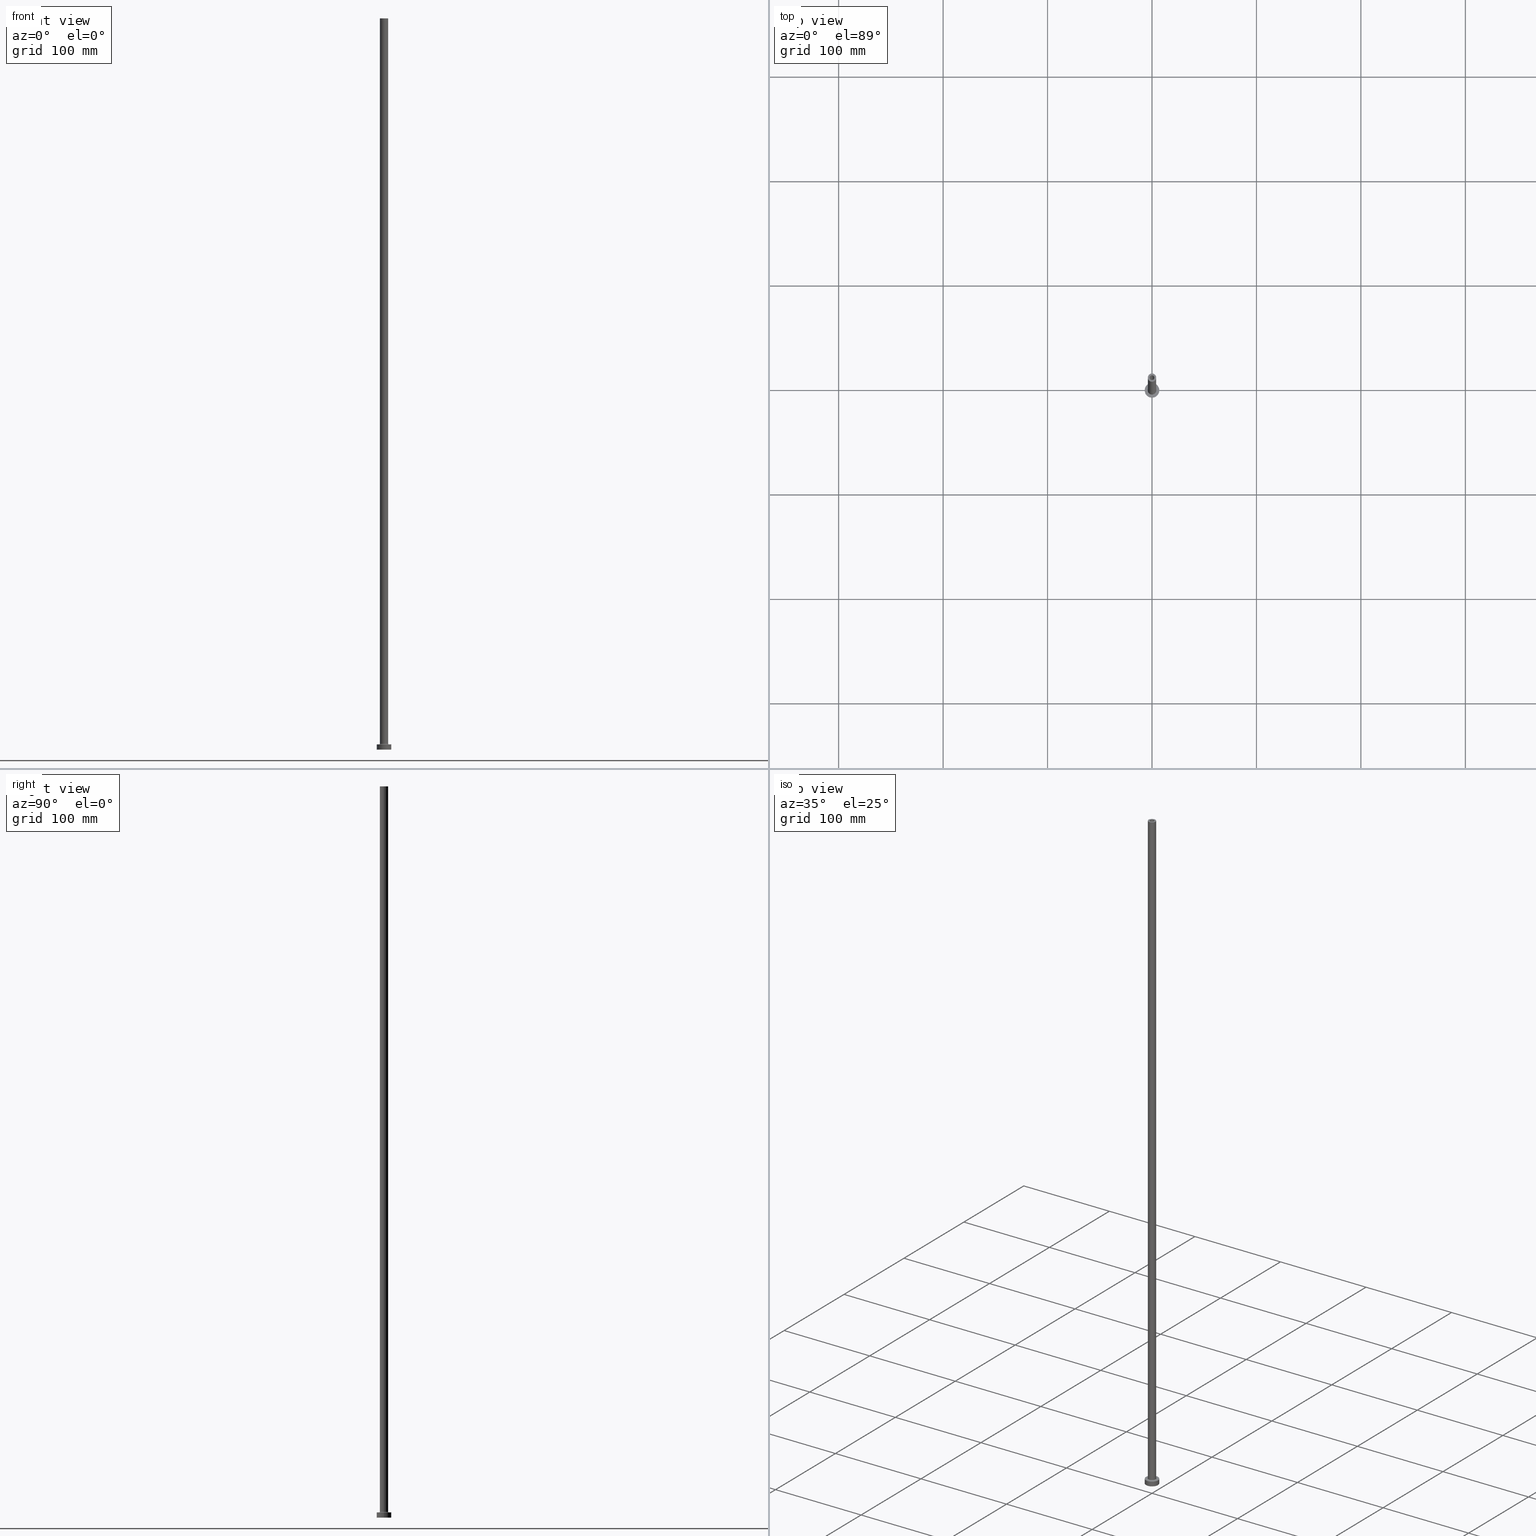
[diagram: canonical four-view strip — front | top / right | iso, engineering-drawing reading convention]
A machine part, canonical four-view strip (front | top / right | iso — engineering-drawing reading convention). The complete STEP part file that produces these views, byte-faithful:
ISO-10303-21;
HEADER;
FILE_DESCRIPTION (( 'STEP AP203' ),
    '1' );
FILE_NAME ('866c.STEP',
    '2023-02-13T17:19:39',
    ( '' ),
    ( '' ),
    'SwSTEP 2.0',
    'SolidWorks 2019',
    '' );
FILE_SCHEMA (( 'CONFIG_CONTROL_DESIGN' ));
ENDSEC;

DATA;
#1 = DIRECTION ( 'NONE',  ( -0.000000000000000000, -0.000000000000000000, -1.000000000000000000 ) ) ;
#2 = EDGE_LOOP ( 'NONE', ( #89, #126 ) ) ;
#3 = DIRECTION ( 'NONE',  ( 0.000000000000000000, 0.000000000000000000, 1.000000000000000000 ) ) ;
#4 = EDGE_CURVE ( 'NONE', #296, #48, #335, .T. ) ;
#5 = VERTEX_POINT ( 'NONE', #428 ) ;
#6 = DIRECTION ( 'NONE',  ( -0.000000000000000000, -0.000000000000000000, -1.000000000000000000 ) ) ;
#7 = APPROVAL_STATUS ( 'not_yet_approved' ) ;
#8 = ORIENTED_EDGE ( 'NONE', *, *, #272, .T. ) ;
#9 = AXIS2_PLACEMENT_3D ( 'NONE', #85, #346, #458 ) ;
#10 = EDGE_CURVE ( 'NONE', #190, #368, #114, .T. ) ;
#11 = DATE_AND_TIME ( #441, #237 ) ;
#12 = EDGE_LOOP ( 'NONE', ( #459, #208, #177, #357 ) ) ;
#13 = DIRECTION ( 'NONE',  ( 0.000000000000000000, 0.000000000000000000, -1.000000000000000000 ) ) ;
#14 = PERSON_AND_ORGANIZATION_ROLE ( 'design_supplier' ) ;
#15 = CC_DESIGN_PERSON_AND_ORGANIZATION_ASSIGNMENT ( #213, #207, ( #36 ) ) ;
#16 = ORIENTED_EDGE ( 'NONE', *, *, #385, .F. ) ;
#17 = FACE_OUTER_BOUND ( 'NONE', #324, .T. ) ;
#18 = ORIENTED_EDGE ( 'NONE', *, *, #301, .F. ) ;
#19 = VECTOR ( 'NONE', #243, 1000.000000000000000 ) ;
#20 = ORIENTED_EDGE ( 'NONE', *, *, #453, .T. ) ;
#21 = DIRECTION ( 'NONE',  ( 0.000000000000000000, 0.000000000000000000, 1.000000000000000000 ) ) ;
#22 = PRODUCT_DEFINITION_SHAPE ( 'NONE', 'NONE',  #84 ) ;
#23 = EDGE_CURVE ( 'NONE', #314, #368, #300, .T. ) ;
#24 = ORIENTED_EDGE ( 'NONE', *, *, #68, .F. ) ;
#25 = CYLINDRICAL_SURFACE ( 'NONE', #28, 2.250000000000000000 ) ;
#26 = DIRECTION ( 'NONE',  ( 0.000000000000000000, 0.000000000000000000, 1.000000000000000000 ) ) ;
#27 = CIRCLE ( 'NONE', #281, 2.399999999999999911 ) ;
#28 = AXIS2_PLACEMENT_3D ( 'NONE', #416, #166, #378 ) ;
#29 = EDGE_CURVE ( 'NONE', #94, #5, #242, .T. ) ;
#30 = DIRECTION ( 'NONE',  ( 1.000000000000000000, 0.000000000000000000, 0.000000000000000000 ) ) ;
#31 = CARTESIAN_POINT ( 'NONE',  ( 0.000000000000000000, 0.000000000000000000, 5.000000000000000000 ) ) ;
#32 = TOROIDAL_SURFACE ( 'NONE', #351, 4.500000000000000888, 0.5000000000000000000 ) ;
#33 = CARTESIAN_POINT ( 'NONE',  ( 0.000000000000000000, 0.000000000000000000, 0.000000000000000000 ) ) ;
#34 = VERTEX_POINT ( 'NONE', #139 ) ;
#35 = CARTESIAN_POINT ( 'NONE',  ( 0.000000000000000000, 0.000000000000000000, 5.499999999999949374 ) ) ;
#36 = PRODUCT ( '866c', '866c', '', ( #248 ) ) ;
#37 = FACE_OUTER_BOUND ( 'NONE', #375, .T. ) ;
#38 = FACE_OUTER_BOUND ( 'NONE', #228, .T. ) ;
#39 = DIRECTION ( 'NONE',  ( -0.000000000000000000, -0.000000000000000000, -1.000000000000000000 ) ) ;
#40 = ORIENTED_EDGE ( 'NONE', *, *, #23, .F. ) ;
#41 = CARTESIAN_POINT ( 'NONE',  ( 0.000000000000000000, 0.000000000000000000, 5.000000000000000000 ) ) ;
#42 = APPROVAL_STATUS ( 'not_yet_approved' ) ;
#43 = EDGE_LOOP ( 'NONE', ( #154, #402 ) ) ;
#44 = CC_DESIGN_APPROVAL ( #252, ( #71 ) ) ;
#45 = CYLINDRICAL_SURFACE ( 'NONE', #323, 4.000000000000000000 ) ;
#46 = CC_DESIGN_DATE_AND_TIME_ASSIGNMENT ( #399, #153, ( #71 ) ) ;
#47 = DIRECTION ( 'NONE',  ( 1.000000000000000000, 0.000000000000000000, 0.000000000000000000 ) ) ;
#48 = VERTEX_POINT ( 'NONE', #249 ) ;
#49 = DIRECTION ( 'NONE',  ( -0.000000000000000000, -0.000000000000000000, -1.000000000000000000 ) ) ;
#50 = AXIS2_PLACEMENT_3D ( 'NONE', #41, #214, #417 ) ;
#51 = CIRCLE ( 'NONE', #236, 2.250000000000000000 ) ;
#52 = PERSON_AND_ORGANIZATION ( #387, #404 ) ;
#53 = EDGE_LOOP ( 'NONE', ( #131, #90 ) ) ;
#54 = CARTESIAN_POINT ( 'NONE',  ( 0.000000000000000000, 0.000000000000000000, 5.499999999999949374 ) ) ;
#55 = APPLICATION_CONTEXT ( 'configuration controlled 3d designs of mechanical parts and assemblies' ) ;
#56 = SHAPE_DEFINITION_REPRESENTATION ( #22, #328 ) ;
#57 = ORIENTED_EDGE ( 'NONE', *, *, #419, .T. ) ;
#58 = CARTESIAN_POINT ( 'NONE',  ( 0.000000000000000000, 0.000000000000000000, 5.000000000000000000 ) ) ;
#59 = COORDINATED_UNIVERSAL_TIME_OFFSET ( 1, 0, .AHEAD. ) ;
#60 = VERTEX_POINT ( 'NONE', #241 ) ;
#61 = DIRECTION ( 'NONE',  ( 0.000000000000000000, 0.000000000000000000, 1.000000000000000000 ) ) ;
#62 = VERTEX_POINT ( 'NONE', #120 ) ;
#63 = EDGE_CURVE ( 'NONE', #5, #94, #192, .T. ) ;
#64 = CC_DESIGN_APPROVAL ( #210, ( #159 ) ) ;
#65 = EDGE_LOOP ( 'NONE', ( #370, #78 ) ) ;
#66 = DIRECTION ( 'NONE',  ( 0.000000000000000000, 0.000000000000000000, 1.000000000000000000 ) ) ;
#67 = CARTESIAN_POINT ( 'NONE',  ( 0.000000000000000000, 0.000000000000000000, 5.000000000000000000 ) ) ;
#68 = EDGE_CURVE ( 'NONE', #62, #96, #227, .T. ) ;
#69 = CLOSED_SHELL ( 'NONE', ( #339, #115, #160, #141, #347, #238, #256, #137, #95, #336, #201, #414, #429, #359 ) ) ;
#70 = DIRECTION ( 'NONE',  ( 0.000000000000000000, 0.000000000000000000, 1.000000000000000000 ) ) ;
#71 = SECURITY_CLASSIFICATION ( '', '', #253 ) ;
#72 = CYLINDRICAL_SURFACE ( 'NONE', #352, 7.000000000000000000 ) ;
#73 = CARTESIAN_POINT ( 'NONE',  ( 7.000000000000000000, 8.572527594031473190E-16, 5.000000000000000000 ) ) ;
#74 = CARTESIAN_POINT ( 'NONE',  ( 0.000000000000000000, 0.000000000000000000, 654.9999999999998863 ) ) ;
#75 = CARTESIAN_POINT ( 'NONE',  ( -2.399999999999999911, 0.000000000000000000, 661.7882250993908428 ) ) ;
#76 = CIRCLE ( 'NONE', #215, 4.000000000000000000 ) ;
#77 =( GEOMETRIC_REPRESENTATION_CONTEXT ( 3 ) GLOBAL_UNCERTAINTY_ASSIGNED_CONTEXT ( ( #449 ) ) GLOBAL_UNIT_ASSIGNED_CONTEXT ( ( #240, #455, #168 ) ) REPRESENTATION_CONTEXT ( 'NONE', 'WORKASPACE' ) );
#78 = ORIENTED_EDGE ( 'NONE', *, *, #272, .F. ) ;
#79 = CARTESIAN_POINT ( 'NONE',  ( 4.000000000000000000, 4.898587196589412829E-16, 700.0000000000000000 ) ) ;
#80 = CARTESIAN_POINT ( 'NONE',  ( 0.000000000000000000, 0.000000000000000000, 661.7882250993908428 ) ) ;
#81 = CARTESIAN_POINT ( 'NONE',  ( 4.000000000000000000, 4.898587196589412829E-16, 700.0000000000000000 ) ) ;
#82 = DIRECTION ( 'NONE',  ( 1.000000000000000000, 0.000000000000000000, 0.000000000000000000 ) ) ;
#83 = CARTESIAN_POINT ( 'NONE',  ( 0.000000000000000000, 0.000000000000000000, 700.0000000000000000 ) ) ;
#84 = PRODUCT_DEFINITION ( 'NEZN�M�', '', #159, #103 ) ;
#85 = CARTESIAN_POINT ( 'NONE',  ( 4.500000000000000888, 0.000000000000000000, 5.499999999999949374 ) ) ;
#86 = FACE_OUTER_BOUND ( 'NONE', #53, .T. ) ;
#87 = ORIENTED_EDGE ( 'NONE', *, *, #309, .T. ) ;
#88 = EDGE_CURVE ( 'NONE', #340, #255, #348, .T. ) ;
#89 = ORIENTED_EDGE ( 'NONE', *, *, #63, .T. ) ;
#90 = ORIENTED_EDGE ( 'NONE', *, *, #163, .F. ) ;
#91 = VECTOR ( 'NONE', #341, 1000.000000000000000 ) ;
#92 = CIRCLE ( 'NONE', #343, 4.500000000000000888 ) ;
#93 = APPROVAL_ROLE ( '' ) ;
#94 = VERTEX_POINT ( 'NONE', #361 ) ;
#95 = ADVANCED_FACE ( 'NONE', ( #394 ), #45, .T. ) ;
#96 = VERTEX_POINT ( 'NONE', #81 ) ;
#97 = ORIENTED_EDGE ( 'NONE', *, *, #379, .T. ) ;
#98 = FACE_BOUND ( 'NONE', #156, .T. ) ;
#99 = CIRCLE ( 'NONE', #206, 2.250000000000000000 ) ;
#100 = CARTESIAN_POINT ( 'NONE',  ( 0.000000000000000000, 0.000000000000000000, 700.0000000000000000 ) ) ;
#101 = CARTESIAN_POINT ( 'NONE',  ( 0.000000000000000000, 0.000000000000000000, 700.0000000000000000 ) ) ;
#102 = CARTESIAN_POINT ( 'NONE',  ( -4.500000000000000888, 5.510910596163089556E-16, 5.499999999999949374 ) ) ;
#103 = DESIGN_CONTEXT ( 'detailed design', #105, 'design' ) ;
#104 = DIRECTION ( 'NONE',  ( -0.000000000000000000, -0.000000000000000000, -1.000000000000000000 ) ) ;
#105 = APPLICATION_CONTEXT ( 'configuration controlled 3d designs of mechanical parts and assemblies' ) ;
#106 = DIRECTION ( 'NONE',  ( 1.000000000000000000, 0.000000000000000000, -0.000000000000000000 ) ) ;
#107 = EDGE_LOOP ( 'NONE', ( #161, #40 ) ) ;
#108 = DIRECTION ( 'NONE',  ( -1.000000000000000000, 0.000000000000000000, 0.000000000000000000 ) ) ;
#109 = APPLICATION_PROTOCOL_DEFINITION ( 'international standard', 'config_control_design', 1994, #55 ) ;
#110 = VECTOR ( 'NONE', #171, 1000.000000000000000 ) ;
#111 = CARTESIAN_POINT ( 'NONE',  ( 4.000000000000000000, 4.898587196589412829E-16, 5.499999999999949374 ) ) ;
#112 = AXIS2_PLACEMENT_3D ( 'NONE', #67, #21, #162 ) ;
#113 = PERSON_AND_ORGANIZATION ( #387, #404 ) ;
#114 = LINE ( 'NONE', #75, #110 ) ;
#115 = ADVANCED_FACE ( 'NONE', ( #209 ), #244, .F. ) ;
#116 = MANIFOLD_SOLID_BREP ( 'Odebrat vysunut�m4', #69 ) ;
#117 = DIRECTION ( 'NONE',  ( 1.000000000000000000, 0.000000000000000000, -0.000000000000000000 ) ) ;
#118 = EDGE_CURVE ( 'NONE', #96, #125, #358, .T. ) ;
#119 = CARTESIAN_POINT ( 'NONE',  ( 4.500000000000000888, 0.000000000000000000, 4.999999999999975131 ) ) ;
#120 = CARTESIAN_POINT ( 'NONE',  ( -4.000000000000000000, 0.000000000000000000, 700.0000000000000000 ) ) ;
#121 = DATE_AND_TIME ( #372, #389 ) ;
#122 = ORIENTED_EDGE ( 'NONE', *, *, #434, .F. ) ;
#123 = AXIS2_PLACEMENT_3D ( 'NONE', #167, #305, #270 ) ;
#124 = ORIENTED_EDGE ( 'NONE', *, *, #29, .F. ) ;
#125 = VERTEX_POINT ( 'NONE', #111 ) ;
#126 = ORIENTED_EDGE ( 'NONE', *, *, #29, .T. ) ;
#127 = DIRECTION ( 'NONE',  ( -0.000000000000000000, -0.000000000000000000, -1.000000000000000000 ) ) ;
#128 = EDGE_CURVE ( 'NONE', #333, #432, #51, .T. ) ;
#129 = COORDINATED_UNIVERSAL_TIME_OFFSET ( 1, 0, .AHEAD. ) ;
#130 = ORIENTED_EDGE ( 'NONE', *, *, #163, .T. ) ;
#131 = ORIENTED_EDGE ( 'NONE', *, *, #88, .F. ) ;
#132 = DIRECTION ( 'NONE',  ( 0.000000000000000000, 0.000000000000000000, -1.000000000000000000 ) ) ;
#133 = FACE_OUTER_BOUND ( 'NONE', #436, .T. ) ;
#134 = CIRCLE ( 'NONE', #245, 2.399999999999999911 ) ;
#135 = CARTESIAN_POINT ( 'NONE',  ( 2.399999999999999911, 2.939152317953647106E-16, 654.9999999999998863 ) ) ;
#136 = CARTESIAN_POINT ( 'NONE',  ( 0.000000000000000000, 0.000000000000000000, 5.499999999999949374 ) ) ;
#137 = ADVANCED_FACE ( 'NONE', ( #355, #86 ), #173, .F. ) ;
#138 = AXIS2_PLACEMENT_3D ( 'NONE', #136, #26, #444 ) ;
#139 = CARTESIAN_POINT ( 'NONE',  ( -4.000000000000000000, 0.000000000000000000, 5.499999999999949374 ) ) ;
#140 = FACE_OUTER_BOUND ( 'NONE', #65, .T. ) ;
#141 = ADVANCED_FACE ( 'NONE', ( #318 ), #461, .T. ) ;
#142 = AXIS2_PLACEMENT_3D ( 'NONE', #247, #353, #143 ) ;
#143 = DIRECTION ( 'NONE',  ( 1.000000000000000000, 0.000000000000000000, 0.000000000000000000 ) ) ;
#144 = FACE_BOUND ( 'NONE', #43, .T. ) ;
#145 = DIRECTION ( 'NONE',  ( 0.000000000000000000, 0.000000000000000000, 1.000000000000000000 ) ) ;
#146 = CALENDAR_DATE ( 2023, 13, 2 ) ;
#147 = DIRECTION ( 'NONE',  ( 1.000000000000000000, 0.000000000000000000, 0.000000000000000000 ) ) ;
#148 = DIRECTION ( 'NONE',  ( 0.000000000000000000, 0.000000000000000000, 1.000000000000000000 ) ) ;
#149 = VECTOR ( 'NONE', #13, 1000.000000000000000 ) ;
#150 = APPROVAL_DATE_TIME ( #286, #210 ) ;
#151 = ORIENTED_EDGE ( 'NONE', *, *, #4, .F. ) ;
#152 = CIRCLE ( 'NONE', #288, 4.000000000000000000 ) ;
#153 = DATE_TIME_ROLE ( 'classification_date' ) ;
#154 = ORIENTED_EDGE ( 'NONE', *, *, #128, .T. ) ;
#155 = CARTESIAN_POINT ( 'NONE',  ( 0.000000000000000000, 0.000000000000000000, 654.9999999999998863 ) ) ;
#156 = EDGE_LOOP ( 'NONE', ( #151, #16 ) ) ;
#157 = DIRECTION ( 'NONE',  ( 1.000000000000000000, 0.000000000000000000, 0.000000000000000000 ) ) ;
#158 = ORIENTED_EDGE ( 'NONE', *, *, #385, .T. ) ;
#159 = PRODUCT_DEFINITION_FORMATION_WITH_SPECIFIED_SOURCE ( 'LIBOVOLN�', '', #36, .NOT_KNOWN. ) ;
#160 = ADVANCED_FACE ( 'NONE', ( #38 ), #174, .F. ) ;
#161 = ORIENTED_EDGE ( 'NONE', *, *, #419, .F. ) ;
#162 = DIRECTION ( 'NONE',  ( 1.000000000000000000, 0.000000000000000000, -0.000000000000000000 ) ) ;
#163 = EDGE_CURVE ( 'NONE', #255, #340, #439, .T. ) ;
#164 = PLANE ( 'NONE',  #216 ) ;
#165 = CIRCLE ( 'NONE', #175, 2.250000000000000000 ) ;
#166 = DIRECTION ( 'NONE',  ( 0.000000000000000000, 0.000000000000000000, -1.000000000000000000 ) ) ;
#167 = CARTESIAN_POINT ( 'NONE',  ( 0.000000000000000000, 0.000000000000000000, 700.0000000000000000 ) ) ;
#168 =( NAMED_UNIT ( * ) SI_UNIT ( $, .STERADIAN. ) SOLID_ANGLE_UNIT ( ) );
#169 = LOCAL_TIME ( 18, 19, 39.00000000000000000, #363 ) ;
#170 = DIRECTION ( 'NONE',  ( 0.000000000000000000, 0.000000000000000000, -1.000000000000000000 ) ) ;
#171 = DIRECTION ( 'NONE',  ( 0.000000000000000000, 0.000000000000000000, -1.000000000000000000 ) ) ;
#172 = CYLINDRICAL_SURFACE ( 'NONE', #447, 2.399999999999999911 ) ;
#173 = PLANE ( 'NONE',  #415 ) ;
#174 = TOROIDAL_SURFACE ( 'NONE', #229, 4.500000000000000888, 0.5000000000000000000 ) ;
#175 = AXIS2_PLACEMENT_3D ( 'NONE', #100, #360, #313 ) ;
#176 = CARTESIAN_POINT ( 'NONE',  ( -4.000000000000000000, 0.000000000000000000, 700.0000000000000000 ) ) ;
#177 = ORIENTED_EDGE ( 'NONE', *, *, #301, .T. ) ;
#178 = DIRECTION ( 'NONE',  ( 1.000000000000000000, 0.000000000000000000, 0.000000000000000000 ) ) ;
#179 = CARTESIAN_POINT ( 'NONE',  ( 0.000000000000000000, 0.000000000000000000, 0.000000000000000000 ) ) ;
#180 = EDGE_CURVE ( 'NONE', #34, #125, #76, .T. ) ;
#181 = CALENDAR_DATE ( 2023, 13, 2 ) ;
#182 = EDGE_LOOP ( 'NONE', ( #124, #97, #130, #18 ) ) ;
#183 = DIRECTION ( 'NONE',  ( 1.000000000000000000, 0.000000000000000000, 0.000000000000000000 ) ) ;
#184 = ORIENTED_EDGE ( 'NONE', *, *, #406, .F. ) ;
#185 = CC_DESIGN_SECURITY_CLASSIFICATION ( #71, ( #159 ) ) ;
#186 = DIRECTION ( 'NONE',  ( 1.000000000000000000, 0.000000000000000000, 0.000000000000000000 ) ) ;
#187 = EDGE_CURVE ( 'NONE', #60, #407, #326, .T. ) ;
#188 = PERSON_AND_ORGANIZATION ( #387, #404 ) ;
#189 = ORIENTED_EDGE ( 'NONE', *, *, #187, .T. ) ;
#190 = VERTEX_POINT ( 'NONE', #325 ) ;
#191 = DIRECTION ( 'NONE',  ( -1.000000000000000000, 0.000000000000000000, 0.000000000000000000 ) ) ;
#192 = CIRCLE ( 'NONE', #142, 7.000000000000000000 ) ;
#193 = EDGE_LOOP ( 'NONE', ( #224, #254, #225, #408 ) ) ;
#194 = AXIS2_PLACEMENT_3D ( 'NONE', #396, #250, #106 ) ;
#195 = ORIENTED_EDGE ( 'NONE', *, *, #269, .T. ) ;
#196 = CARTESIAN_POINT ( 'NONE',  ( -7.000000000000000000, 0.000000000000000000, 0.000000000000000000 ) ) ;
#197 = CC_DESIGN_PERSON_AND_ORGANIZATION_ASSIGNMENT ( #369, #322, ( #71 ) ) ;
#198 = AXIS2_PLACEMENT_3D ( 'NONE', #279, #170, #426 ) ;
#199 = CARTESIAN_POINT ( 'NONE',  ( -2.250000000000000000, 0.000000000000000000, 700.0000000000000000 ) ) ;
#200 = APPROVAL_PERSON_ORGANIZATION ( #113, #438, #354 ) ;
#201 = ADVANCED_FACE ( 'NONE', ( #17 ), #32, .F. ) ;
#202 = DIRECTION ( 'NONE',  ( -0.000000000000000000, -0.000000000000000000, -1.000000000000000000 ) ) ;
#203 = CC_DESIGN_PERSON_AND_ORGANIZATION_ASSIGNMENT ( #223, #257, ( #159 ) ) ;
#204 = FACE_OUTER_BOUND ( 'NONE', #2, .T. ) ;
#205 = CARTESIAN_POINT ( 'NONE',  ( 0.000000000000000000, 0.000000000000000000, 700.0000000000000000 ) ) ;
#206 = AXIS2_PLACEMENT_3D ( 'NONE', #74, #452, #392 ) ;
#207 = PERSON_AND_ORGANIZATION_ROLE ( 'design_owner' ) ;
#208 = ORIENTED_EDGE ( 'NONE', *, *, #63, .F. ) ;
#209 = FACE_OUTER_BOUND ( 'NONE', #193, .T. ) ;
#210 = APPROVAL ( #7, 'NEUR�EN�' ) ;
#211 = DIRECTION ( 'NONE',  ( 1.000000000000000000, 0.000000000000000000, 0.000000000000000000 ) ) ;
#212 = DIRECTION ( 'NONE',  ( -0.000000000000000000, -0.000000000000000000, -1.000000000000000000 ) ) ;
#213 = PERSON_AND_ORGANIZATION ( #387, #404 ) ;
#214 = DIRECTION ( 'NONE',  ( 0.000000000000000000, 0.000000000000000000, 1.000000000000000000 ) ) ;
#215 = AXIS2_PLACEMENT_3D ( 'NONE', #285, #148, #287 ) ;
#216 = AXIS2_PLACEMENT_3D ( 'NONE', #273, #70, #345 ) ;
#217 = EDGE_CURVE ( 'NONE', #263, #314, #221, .T. ) ;
#218 = CARTESIAN_POINT ( 'NONE',  ( 0.000000000000000000, 0.000000000000000000, 654.9999999999998863 ) ) ;
#219 = ORIENTED_EDGE ( 'NONE', *, *, #10, .T. ) ;
#220 = ORIENTED_EDGE ( 'NONE', *, *, #289, .T. ) ;
#221 = LINE ( 'NONE', #331, #149 ) ;
#222 = VECTOR ( 'NONE', #132, 1000.000000000000000 ) ;
#223 = PERSON_AND_ORGANIZATION ( #387, #404 ) ;
#224 = ORIENTED_EDGE ( 'NONE', *, *, #230, .T. ) ;
#225 = ORIENTED_EDGE ( 'NONE', *, *, #23, .T. ) ;
#226 = ORIENTED_EDGE ( 'NONE', *, *, #391, .T. ) ;
#227 = CIRCLE ( 'NONE', #306, 4.000000000000000000 ) ;
#228 = EDGE_LOOP ( 'NONE', ( #291, #330, #266, #294 ) ) ;
#229 = AXIS2_PLACEMENT_3D ( 'NONE', #35, #145, #178 ) ;
#230 = EDGE_CURVE ( 'NONE', #190, #263, #134, .T. ) ;
#231 = CIRCLE ( 'NONE', #316, 0.5000000000000004441 ) ;
#232 = CARTESIAN_POINT ( 'NONE',  ( 2.399999999999999911, 2.939152317953647106E-16, 0.000000000000000000 ) ) ;
#233 = CARTESIAN_POINT ( 'NONE',  ( 0.000000000000000000, 0.000000000000000000, 5.000000000000000000 ) ) ;
#234 = DIRECTION ( 'NONE',  ( 1.000000000000000000, 0.000000000000000000, 0.000000000000000000 ) ) ;
#235 = CARTESIAN_POINT ( 'NONE',  ( 0.000000000000000000, 0.000000000000000000, 654.9999999999998863 ) ) ;
#236 = AXIS2_PLACEMENT_3D ( 'NONE', #218, #421, #390 ) ;
#237 = LOCAL_TIME ( 18, 19, 39.00000000000000000, #129 ) ;
#238 = ADVANCED_FACE ( 'NONE', ( #371 ), #437, .T. ) ;
#239 = LINE ( 'NONE', #73, #376 ) ;
#240 =( LENGTH_UNIT ( ) NAMED_UNIT ( * ) SI_UNIT ( .MILLI., .METRE. ) );
#241 = CARTESIAN_POINT ( 'NONE',  ( -4.500000000000000888, 5.510910596163088569E-16, 4.999999999999975131 ) ) ;
#242 = CIRCLE ( 'NONE', #50, 7.000000000000000000 ) ;
#243 = DIRECTION ( 'NONE',  ( 0.000000000000000000, 0.000000000000000000, -1.000000000000000000 ) ) ;
#244 = CYLINDRICAL_SURFACE ( 'NONE', #198, 2.399999999999999911 ) ;
#245 = AXIS2_PLACEMENT_3D ( 'NONE', #155, #259, #157 ) ;
#246 = COORDINATED_UNIVERSAL_TIME_OFFSET ( 1, 0, .AHEAD. ) ;
#247 = CARTESIAN_POINT ( 'NONE',  ( 0.000000000000000000, 0.000000000000000000, 5.000000000000000000 ) ) ;
#248 = MECHANICAL_CONTEXT ( 'NONE', #55, 'mechanical' ) ;
#249 = CARTESIAN_POINT ( 'NONE',  ( 2.250000000000000000, 2.755455298081544285E-16, 700.0000000000000000 ) ) ;
#250 = DIRECTION ( 'NONE',  ( 0.000000000000000000, 0.000000000000000000, 1.000000000000000000 ) ) ;
#251 = DIRECTION ( 'NONE',  ( 0.000000000000000000, 0.000000000000000000, 1.000000000000000000 ) ) ;
#252 = APPROVAL ( #430, 'NEUR�EN�' ) ;
#253 = SECURITY_CLASSIFICATION_LEVEL ( 'unclassified' ) ;
#254 = ORIENTED_EDGE ( 'NONE', *, *, #217, .T. ) ;
#255 = VERTEX_POINT ( 'NONE', #337 ) ;
#256 = ADVANCED_FACE ( 'NONE', ( #302, #204 ), #448, .T. ) ;
#257 = PERSON_AND_ORGANIZATION_ROLE ( 'creator' ) ;
#258 = EDGE_LOOP ( 'NONE', ( #350, #195, #293, #297 ) ) ;
#259 = DIRECTION ( 'NONE',  ( 0.000000000000000000, 0.000000000000000000, 1.000000000000000000 ) ) ;
#260 = PRODUCT_RELATED_PRODUCT_CATEGORY ( 'detail', '', ( #36 ) ) ;
#261 = VECTOR ( 'NONE', #212, 1000.000000000000000 ) ;
#262 = LOCAL_TIME ( 18, 19, 39.00000000000000000, #246 ) ;
#263 = VERTEX_POINT ( 'NONE', #135 ) ;
#264 = APPROVAL_ROLE ( '' ) ;
#265 = ORIENTED_EDGE ( 'NONE', *, *, #118, .F. ) ;
#266 = ORIENTED_EDGE ( 'NONE', *, *, #289, .F. ) ;
#267 = LINE ( 'NONE', #298, #91 ) ;
#268 = AXIS2_PLACEMENT_3D ( 'NONE', #395, #312, #47 ) ;
#269 = EDGE_CURVE ( 'NONE', #48, #432, #413, .T. ) ;
#270 = DIRECTION ( 'NONE',  ( -1.000000000000000000, 0.000000000000000000, 0.000000000000000000 ) ) ;
#271 = CARTESIAN_POINT ( 'NONE',  ( 2.250000000000000000, 2.755455298081544285E-16, 700.0000000000000000 ) ) ;
#272 = EDGE_CURVE ( 'NONE', #263, #190, #27, .T. ) ;
#273 = CARTESIAN_POINT ( 'NONE',  ( 0.000000000000000000, 0.000000000000000000, 700.0000000000000000 ) ) ;
#274 = AXIS2_PLACEMENT_3D ( 'NONE', #366, #49, #183 ) ;
#275 = PLANE ( 'NONE',  #194 ) ;
#276 = DIRECTION ( 'NONE',  ( -1.000000000000000000, 0.000000000000000000, 0.000000000000000000 ) ) ;
#277 = CARTESIAN_POINT ( 'NONE',  ( 0.000000000000000000, 0.000000000000000000, 0.000000000000000000 ) ) ;
#278 = EDGE_LOOP ( 'NONE', ( #373, #87 ) ) ;
#279 = CARTESIAN_POINT ( 'NONE',  ( 0.000000000000000000, 0.000000000000000000, 661.7882250993908428 ) ) ;
#280 = CARTESIAN_POINT ( 'NONE',  ( 0.000000000000000000, 0.000000000000000000, 0.000000000000000000 ) ) ;
#281 = AXIS2_PLACEMENT_3D ( 'NONE', #235, #66, #30 ) ;
#282 = DIRECTION ( 'NONE',  ( -0.000000000000000000, -0.000000000000000000, -1.000000000000000000 ) ) ;
#283 = DATE_AND_TIME ( #146, #262 ) ;
#284 = ORIENTED_EDGE ( 'NONE', *, *, #342, .F. ) ;
#285 = CARTESIAN_POINT ( 'NONE',  ( 0.000000000000000000, 0.000000000000000000, 5.499999999999949374 ) ) ;
#286 = DATE_AND_TIME ( #181, #308 ) ;
#287 = DIRECTION ( 'NONE',  ( 1.000000000000000000, 0.000000000000000000, 0.000000000000000000 ) ) ;
#288 = AXIS2_PLACEMENT_3D ( 'NONE', #101, #409, #412 ) ;
#289 = EDGE_CURVE ( 'NONE', #407, #60, #92, .T. ) ;
#290 = PERSON_AND_ORGANIZATION ( #387, #404 ) ;
#291 = ORIENTED_EDGE ( 'NONE', *, *, #180, .F. ) ;
#292 = PERSON_AND_ORGANIZATION ( #387, #404 ) ;
#293 = ORIENTED_EDGE ( 'NONE', *, *, #128, .F. ) ;
#294 = ORIENTED_EDGE ( 'NONE', *, *, #391, .F. ) ;
#295 = APPROVAL_DATE_TIME ( #11, #252 ) ;
#296 = VERTEX_POINT ( 'NONE', #199 ) ;
#297 = ORIENTED_EDGE ( 'NONE', *, *, #453, .F. ) ;
#298 = CARTESIAN_POINT ( 'NONE',  ( -7.000000000000000000, 0.000000000000000000, 5.000000000000000000 ) ) ;
#299 = DIRECTION ( 'NONE',  ( 1.224646799147353207E-16, 1.000000000000000000, -0.000000000000000000 ) ) ;
#300 = CIRCLE ( 'NONE', #445, 2.399999999999999911 ) ;
#301 = EDGE_CURVE ( 'NONE', #5, #340, #267, .T. ) ;
#302 = FACE_BOUND ( 'NONE', #338, .T. ) ;
#303 = EDGE_CURVE ( 'NONE', #125, #34, #383, .T. ) ;
#304 = DIRECTION ( 'NONE',  ( -1.000000000000000000, 1.224646799147351482E-16, 0.000000000000000000 ) ) ;
#305 = DIRECTION ( 'NONE',  ( 0.000000000000000000, 0.000000000000000000, -1.000000000000000000 ) ) ;
#306 = AXIS2_PLACEMENT_3D ( 'NONE', #83, #251, #397 ) ;
#307 = DIRECTION ( 'NONE',  ( -1.000000000000000000, 0.000000000000000000, 0.000000000000000000 ) ) ;
#308 = LOCAL_TIME ( 18, 19, 39.00000000000000000, #435 ) ;
#309 = EDGE_CURVE ( 'NONE', #96, #62, #152, .T. ) ;
#310 = CARTESIAN_POINT ( 'NONE',  ( 0.000000000000000000, 0.000000000000000000, 0.000000000000000000 ) ) ;
#311 = LINE ( 'NONE', #356, #19 ) ;
#312 = DIRECTION ( 'NONE',  ( 0.000000000000000000, 0.000000000000000000, 1.000000000000000000 ) ) ;
#313 = DIRECTION ( 'NONE',  ( 1.000000000000000000, 0.000000000000000000, 0.000000000000000000 ) ) ;
#314 = VERTEX_POINT ( 'NONE', #232 ) ;
#315 = DIRECTION ( 'NONE',  ( 0.000000000000000000, 0.000000000000000000, 1.000000000000000000 ) ) ;
#316 = AXIS2_PLACEMENT_3D ( 'NONE', #102, #299, #304 ) ;
#317 = CARTESIAN_POINT ( 'NONE',  ( 2.250000000000000000, 2.755455298081544285E-16, 654.9999999999998863 ) ) ;
#318 = FACE_OUTER_BOUND ( 'NONE', #431, .T. ) ;
#319 = PERSON_AND_ORGANIZATION_ROLE ( 'creator' ) ;
#320 = DIRECTION ( 'NONE',  ( -0.000000000000000000, -0.000000000000000000, -1.000000000000000000 ) ) ;
#321 = AXIS2_PLACEMENT_3D ( 'NONE', #377, #364, #425 ) ;
#322 = PERSON_AND_ORGANIZATION_ROLE ( 'classification_officer' ) ;
#323 = AXIS2_PLACEMENT_3D ( 'NONE', #456, #6, #276 ) ;
#324 = EDGE_LOOP ( 'NONE', ( #284, #433, #226, #405 ) ) ;
#325 = CARTESIAN_POINT ( 'NONE',  ( -2.399999999999999911, 0.000000000000000000, 654.9999999999998863 ) ) ;
#326 = CIRCLE ( 'NONE', #274, 4.500000000000000888 ) ;
#327 = CC_DESIGN_APPROVAL ( #438, ( #84 ) ) ;
#328 = ADVANCED_BREP_SHAPE_REPRESENTATION ( '866c', ( #116, #403 ), #77 ) ;
#329 = CALENDAR_DATE ( 2023, 13, 2 ) ;
#330 = ORIENTED_EDGE ( 'NONE', *, *, #342, .T. ) ;
#331 = CARTESIAN_POINT ( 'NONE',  ( 2.399999999999999911, 2.939152317953647106E-16, 661.7882250993908428 ) ) ;
#332 = DATE_TIME_ROLE ( 'creation_date' ) ;
#333 = VERTEX_POINT ( 'NONE', #381 ) ;
#334 = ORIENTED_EDGE ( 'NONE', *, *, #118, .T. ) ;
#335 = CIRCLE ( 'NONE', #321, 2.250000000000000000 ) ;
#336 = ADVANCED_FACE ( 'NONE', ( #98, #380 ), #164, .T. ) ;
#337 = CARTESIAN_POINT ( 'NONE',  ( 7.000000000000000000, 8.572527594031473190E-16, 0.000000000000000000 ) ) ;
#338 = EDGE_LOOP ( 'NONE', ( #220, #189 ) ) ;
#339 = ADVANCED_FACE ( 'NONE', ( #344 ), #25, .F. ) ;
#340 = VERTEX_POINT ( 'NONE', #196 ) ;
#341 = DIRECTION ( 'NONE',  ( -0.000000000000000000, -0.000000000000000000, -1.000000000000000000 ) ) ;
#342 = EDGE_CURVE ( 'NONE', #34, #60, #231, .T. ) ;
#343 = AXIS2_PLACEMENT_3D ( 'NONE', #233, #202, #234 ) ;
#344 = FACE_OUTER_BOUND ( 'NONE', #258, .T. ) ;
#345 = DIRECTION ( 'NONE',  ( 1.000000000000000000, 0.000000000000000000, -0.000000000000000000 ) ) ;
#346 = DIRECTION ( 'NONE',  ( 0.000000000000000000, -1.000000000000000000, 0.000000000000000000 ) ) ;
#347 = ADVANCED_FACE ( 'NONE', ( #384 ), #72, .T. ) ;
#348 = CIRCLE ( 'NONE', #268, 7.000000000000000000 ) ;
#349 = LINE ( 'NONE', #176, #460 ) ;
#350 = ORIENTED_EDGE ( 'NONE', *, *, #4, .T. ) ;
#351 = AXIS2_PLACEMENT_3D ( 'NONE', #54, #61, #186 ) ;
#352 = AXIS2_PLACEMENT_3D ( 'NONE', #31, #104, #446 ) ;
#353 = DIRECTION ( 'NONE',  ( 0.000000000000000000, 0.000000000000000000, 1.000000000000000000 ) ) ;
#354 = APPROVAL_ROLE ( '' ) ;
#355 = FACE_BOUND ( 'NONE', #107, .T. ) ;
#356 = CARTESIAN_POINT ( 'NONE',  ( -2.250000000000000000, 0.000000000000000000, 700.0000000000000000 ) ) ;
#357 = ORIENTED_EDGE ( 'NONE', *, *, #88, .T. ) ;
#358 = LINE ( 'NONE', #79, #261 ) ;
#359 = ADVANCED_FACE ( 'NONE', ( #133 ), #386, .F. ) ;
#360 = DIRECTION ( 'NONE',  ( 0.000000000000000000, 0.000000000000000000, 1.000000000000000000 ) ) ;
#361 = CARTESIAN_POINT ( 'NONE',  ( 7.000000000000000000, 8.572527594031473190E-16, 5.000000000000000000 ) ) ;
#362 = APPROVAL_PERSON_ORGANIZATION ( #292, #210, #93 ) ;
#363 = COORDINATED_UNIVERSAL_TIME_OFFSET ( 1, 0, .AHEAD. ) ;
#364 = DIRECTION ( 'NONE',  ( 0.000000000000000000, 0.000000000000000000, 1.000000000000000000 ) ) ;
#365 = ORIENTED_EDGE ( 'NONE', *, *, #180, .T. ) ;
#366 = CARTESIAN_POINT ( 'NONE',  ( 0.000000000000000000, 0.000000000000000000, 5.000000000000000000 ) ) ;
#367 = CC_DESIGN_PERSON_AND_ORGANIZATION_ASSIGNMENT ( #188, #319, ( #84 ) ) ;
#368 = VERTEX_POINT ( 'NONE', #450 ) ;
#369 = PERSON_AND_ORGANIZATION ( #387, #404 ) ;
#370 = ORIENTED_EDGE ( 'NONE', *, *, #230, .F. ) ;
#371 = FACE_OUTER_BOUND ( 'NONE', #12, .T. ) ;
#372 = CALENDAR_DATE ( 2023, 13, 2 ) ;
#373 = ORIENTED_EDGE ( 'NONE', *, *, #68, .T. ) ;
#374 = CC_DESIGN_DATE_AND_TIME_ASSIGNMENT ( #121, #332, ( #84 ) ) ;
#375 = EDGE_LOOP ( 'NONE', ( #393, #8, #219, #57 ) ) ;
#376 = VECTOR ( 'NONE', #411, 1000.000000000000000 ) ;
#377 = CARTESIAN_POINT ( 'NONE',  ( 0.000000000000000000, 0.000000000000000000, 700.0000000000000000 ) ) ;
#378 = DIRECTION ( 'NONE',  ( -1.000000000000000000, 0.000000000000000000, 0.000000000000000000 ) ) ;
#379 = EDGE_CURVE ( 'NONE', #94, #255, #239, .T. ) ;
#380 = FACE_OUTER_BOUND ( 'NONE', #278, .T. ) ;
#381 = CARTESIAN_POINT ( 'NONE',  ( -2.250000000000000000, 0.000000000000000000, 654.9999999999998863 ) ) ;
#382 = AXIS2_PLACEMENT_3D ( 'NONE', #205, #320, #108 ) ;
#383 = CIRCLE ( 'NONE', #138, 4.000000000000000000 ) ;
#384 = FACE_OUTER_BOUND ( 'NONE', #182, .T. ) ;
#385 = EDGE_CURVE ( 'NONE', #48, #296, #165, .T. ) ;
#386 = CYLINDRICAL_SURFACE ( 'NONE', #123, 2.250000000000000000 ) ;
#387 = PERSON ( 'NEUR�EN�', 'NEUR�EN�', 'NEUR�EN�', ('NEUR�EN�'), ('NEUR�EN�'), ('NEUR�EN�') ) ;
#388 = DIRECTION ( 'NONE',  ( 0.000000000000000000, 0.000000000000000000, -1.000000000000000000 ) ) ;
#389 = LOCAL_TIME ( 18, 19, 39.00000000000000000, #59 ) ;
#390 = DIRECTION ( 'NONE',  ( 1.000000000000000000, 0.000000000000000000, 0.000000000000000000 ) ) ;
#391 = EDGE_CURVE ( 'NONE', #125, #407, #398, .T. ) ;
#392 = DIRECTION ( 'NONE',  ( 1.000000000000000000, 0.000000000000000000, 0.000000000000000000 ) ) ;
#393 = ORIENTED_EDGE ( 'NONE', *, *, #217, .F. ) ;
#394 = FACE_OUTER_BOUND ( 'NONE', #420, .T. ) ;
#395 = CARTESIAN_POINT ( 'NONE',  ( 0.000000000000000000, 0.000000000000000000, 0.000000000000000000 ) ) ;
#396 = CARTESIAN_POINT ( 'NONE',  ( 0.000000000000000000, 0.000000000000000000, 654.9999999999998863 ) ) ;
#397 = DIRECTION ( 'NONE',  ( 1.000000000000000000, 0.000000000000000000, 0.000000000000000000 ) ) ;
#398 = CIRCLE ( 'NONE', #9, 0.5000000000000004441 ) ;
#399 = DATE_AND_TIME ( #329, #169 ) ;
#400 = ORIENTED_EDGE ( 'NONE', *, *, #406, .T. ) ;
#401 = ORIENTED_EDGE ( 'NONE', *, *, #303, .T. ) ;
#402 = ORIENTED_EDGE ( 'NONE', *, *, #434, .T. ) ;
#403 = AXIS2_PLACEMENT_3D ( 'NONE', #277, #418, #82 ) ;
#404 = ORGANIZATION ( 'NEUR�EN�', 'NEUR�EN�', '' ) ;
#405 = ORIENTED_EDGE ( 'NONE', *, *, #187, .F. ) ;
#406 = EDGE_CURVE ( 'NONE', #62, #34, #349, .T. ) ;
#407 = VERTEX_POINT ( 'NONE', #119 ) ;
#408 = ORIENTED_EDGE ( 'NONE', *, *, #10, .F. ) ;
#409 = DIRECTION ( 'NONE',  ( 0.000000000000000000, 0.000000000000000000, 1.000000000000000000 ) ) ;
#410 = CIRCLE ( 'NONE', #451, 2.399999999999999911 ) ;
#411 = DIRECTION ( 'NONE',  ( -0.000000000000000000, -0.000000000000000000, -1.000000000000000000 ) ) ;
#412 = DIRECTION ( 'NONE',  ( 1.000000000000000000, 0.000000000000000000, 0.000000000000000000 ) ) ;
#413 = LINE ( 'NONE', #271, #222 ) ;
#414 = ADVANCED_FACE ( 'NONE', ( #37 ), #172, .F. ) ;
#415 = AXIS2_PLACEMENT_3D ( 'NONE', #179, #315, #117 ) ;
#416 = CARTESIAN_POINT ( 'NONE',  ( 0.000000000000000000, 0.000000000000000000, 700.0000000000000000 ) ) ;
#417 = DIRECTION ( 'NONE',  ( 1.000000000000000000, 0.000000000000000000, 0.000000000000000000 ) ) ;
#418 = DIRECTION ( 'NONE',  ( 0.000000000000000000, 0.000000000000000000, 1.000000000000000000 ) ) ;
#419 = EDGE_CURVE ( 'NONE', #368, #314, #410, .T. ) ;
#420 = EDGE_LOOP ( 'NONE', ( #265, #24, #400, #365 ) ) ;
#421 = DIRECTION ( 'NONE',  ( 0.000000000000000000, 0.000000000000000000, 1.000000000000000000 ) ) ;
#422 = APPLICATION_PROTOCOL_DEFINITION ( 'international standard', 'config_control_design', 1994, #105 ) ;
#423 = AXIS2_PLACEMENT_3D ( 'NONE', #58, #127, #191 ) ;
#424 = CC_DESIGN_PERSON_AND_ORGANIZATION_ASSIGNMENT ( #52, #14, ( #159 ) ) ;
#425 = DIRECTION ( 'NONE',  ( 1.000000000000000000, 0.000000000000000000, 0.000000000000000000 ) ) ;
#426 = DIRECTION ( 'NONE',  ( -1.000000000000000000, 0.000000000000000000, 0.000000000000000000 ) ) ;
#427 = APPROVAL_DATE_TIME ( #283, #438 ) ;
#428 = CARTESIAN_POINT ( 'NONE',  ( -7.000000000000000000, 0.000000000000000000, 5.000000000000000000 ) ) ;
#429 = ADVANCED_FACE ( 'NONE', ( #144, #140 ), #275, .F. ) ;
#430 = APPROVAL_STATUS ( 'not_yet_approved' ) ;
#431 = EDGE_LOOP ( 'NONE', ( #443, #334, #401, #184 ) ) ;
#432 = VERTEX_POINT ( 'NONE', #317 ) ;
#433 = ORIENTED_EDGE ( 'NONE', *, *, #303, .F. ) ;
#434 = EDGE_CURVE ( 'NONE', #432, #333, #99, .T. ) ;
#435 = COORDINATED_UNIVERSAL_TIME_OFFSET ( 1, 0, .AHEAD. ) ;
#436 = EDGE_LOOP ( 'NONE', ( #442, #158, #20, #122 ) ) ;
#437 = CYLINDRICAL_SURFACE ( 'NONE', #423, 7.000000000000000000 ) ;
#438 = APPROVAL ( #42, 'NEUR�EN�' ) ;
#439 = CIRCLE ( 'NONE', #457, 7.000000000000000000 ) ;
#440 = APPROVAL_PERSON_ORGANIZATION ( #290, #252, #264 ) ;
#441 = CALENDAR_DATE ( 2023, 13, 2 ) ;
#442 = ORIENTED_EDGE ( 'NONE', *, *, #269, .F. ) ;
#443 = ORIENTED_EDGE ( 'NONE', *, *, #309, .F. ) ;
#444 = DIRECTION ( 'NONE',  ( 1.000000000000000000, 0.000000000000000000, 0.000000000000000000 ) ) ;
#445 = AXIS2_PLACEMENT_3D ( 'NONE', #310, #282, #454 ) ;
#446 = DIRECTION ( 'NONE',  ( -1.000000000000000000, 0.000000000000000000, 0.000000000000000000 ) ) ;
#447 = AXIS2_PLACEMENT_3D ( 'NONE', #80, #388, #307 ) ;
#448 = PLANE ( 'NONE',  #112 ) ;
#449 = UNCERTAINTY_MEASURE_WITH_UNIT (LENGTH_MEASURE( 1.000000000000000082E-05 ), #240, 'distance_accuracy_value', 'NONE');
#450 = CARTESIAN_POINT ( 'NONE',  ( -2.399999999999999911, 0.000000000000000000, 0.000000000000000000 ) ) ;
#451 = AXIS2_PLACEMENT_3D ( 'NONE', #33, #1, #211 ) ;
#452 = DIRECTION ( 'NONE',  ( 0.000000000000000000, 0.000000000000000000, 1.000000000000000000 ) ) ;
#453 = EDGE_CURVE ( 'NONE', #296, #333, #311, .T. ) ;
#454 = DIRECTION ( 'NONE',  ( 1.000000000000000000, 0.000000000000000000, 0.000000000000000000 ) ) ;
#455 =( NAMED_UNIT ( * ) PLANE_ANGLE_UNIT ( ) SI_UNIT ( $, .RADIAN. ) );
#456 = CARTESIAN_POINT ( 'NONE',  ( 0.000000000000000000, 0.000000000000000000, 700.0000000000000000 ) ) ;
#457 = AXIS2_PLACEMENT_3D ( 'NONE', #280, #3, #147 ) ;
#458 = DIRECTION ( 'NONE',  ( 0.000000000000000000, 0.000000000000000000, -1.000000000000000000 ) ) ;
#459 = ORIENTED_EDGE ( 'NONE', *, *, #379, .F. ) ;
#460 = VECTOR ( 'NONE', #39, 1000.000000000000000 ) ;
#461 = CYLINDRICAL_SURFACE ( 'NONE', #382, 4.000000000000000000 ) ;
ENDSEC;
END-ISO-10303-21;
